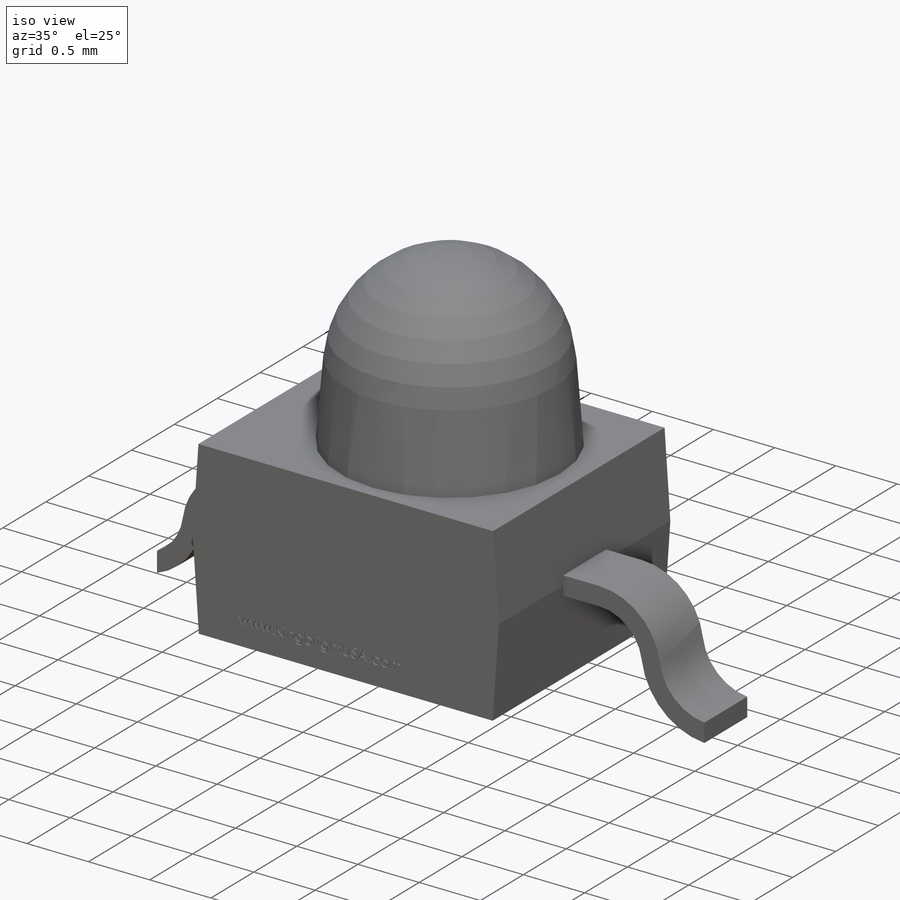
[diagram: iso view]
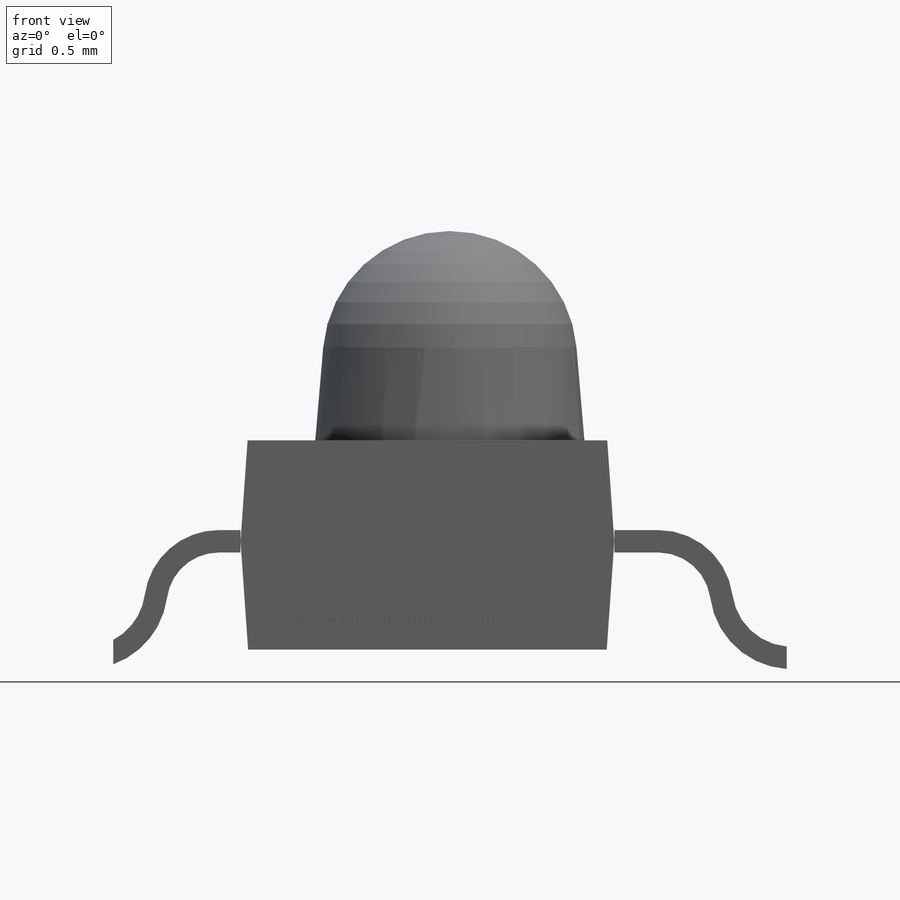
[diagram: front view]
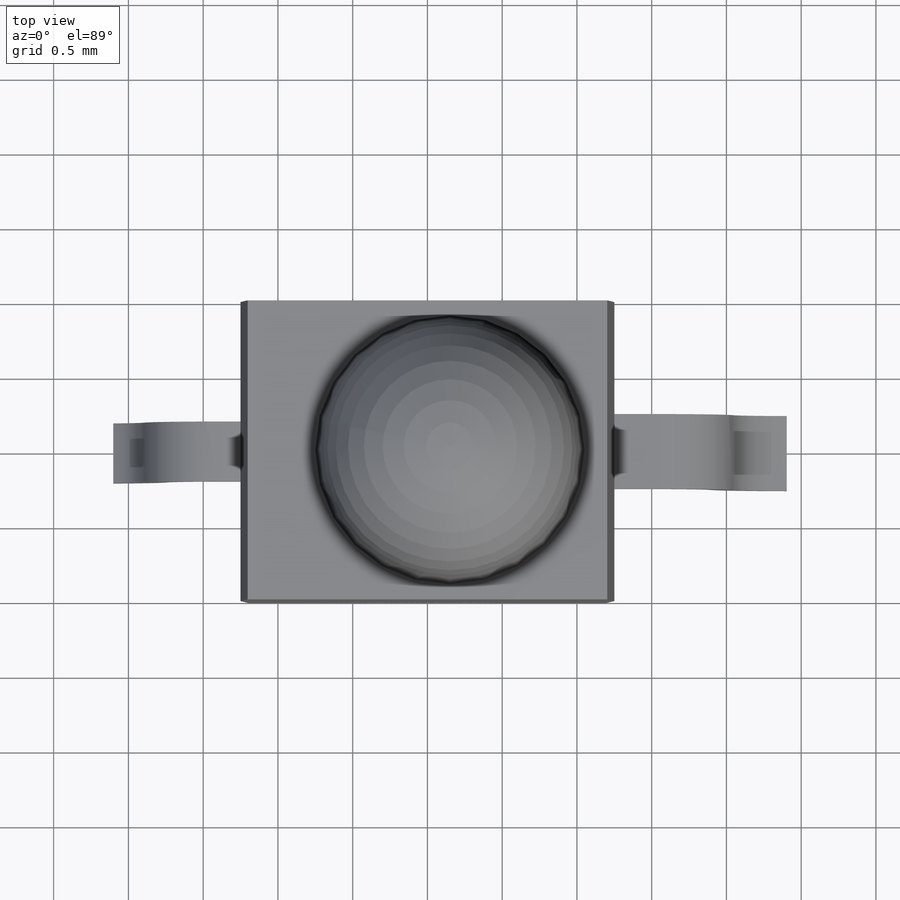
[diagram: top view]
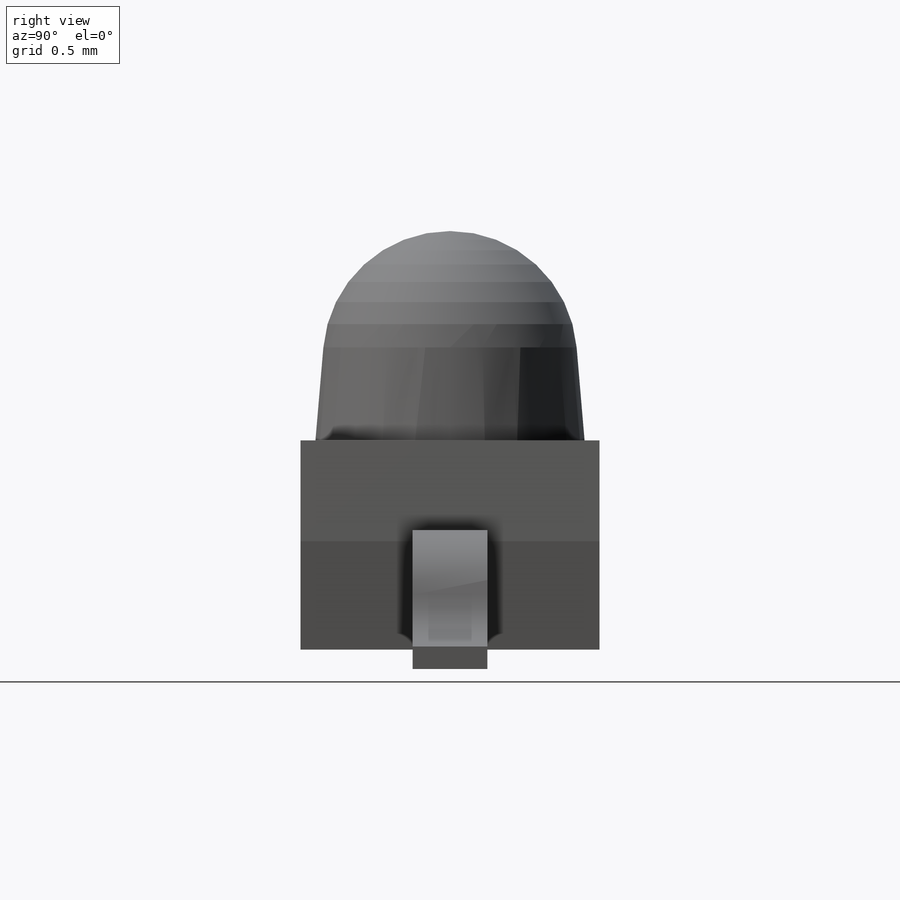
[diagram: right view]
SOLIDWORKS PART (.sldprt)
format: sldprt  version: not decoded by parser v0  size: 651,264 bytes
history: native  units: mm
features: sketch x5, extrude x3, material x1, revolve x1, cut_extrude x1 (+11 scaffold rows collapsed)
feature tree (22):
  scaffold x11  (default folders/planes/origin — collapsed)
  material  "Material <not specified>"
  sketch  "Sketch1"  dims[c1.D3=0.85mm c1.D13=~0.529521mm c1.D14=0.5mm c1.D15=0.4mm c1.D18=0.5mm c1.D19=0.5mm c1.D20=0.4mm c1.D1=2.5mm c1.D2=1.4mm c1.D4=1.1mm c1.D5=0.9mm c1.D6=2.8mm c1.D7=0.675mm c1.D8=~0.679963mm c2.D8=4.0deg c2.D9=~0.745137mm c3.D9=~166.649504deg c4.D9=~0.745137mm c5.D9=4.0deg c5.D10=0.15mm c5.D11=7.0mm c5.D12=8.0mm c5.D13=0.25mm c5.D14=0.5mm c6.D11=0.13mm c6.D12=0.6mm c6.D13=0.3mm c7.D11=0.13mm c7.D16=1.153mm c7.D17=0.2mm c7.D20=0.8323mm c8.D17=4.806mm c8.D18=0.15mm c8.D21=~4.503937mm c8.D22=1.1mm c8.D10=0.15mm c9.D17=0.15mm]
  extrude  "Extrude1"  Depth=2mm
  extrude  "Extrude2"  [1 undecoded]
  sketch  "Sketch1<3>"  dims[D1=0.5mm]
  revolve  "Revolve1"  [1 undecoded]
  sketch  "Sketch1<4>"  dims[D1=360.0deg]
  extrude  "Extrude3"  [1 undecoded]
  sketch  "Sketch1<5>"  dims[D1=0.4mm]
  sketch  "Sketch2"  dims[D1=~1.875266mm]
  cut_extrude  "Cut-Extrude1"  Depth=0.01mm
decode coverage: 7 of 10 modeling features carry decoded parameters
note: ~ marks probable driven/reference dimensions
note: 3 parameter values undecoded
summary: no parameter record found for 3 features
note: suppression state not decoded; provenance and decode notes live in map.json
